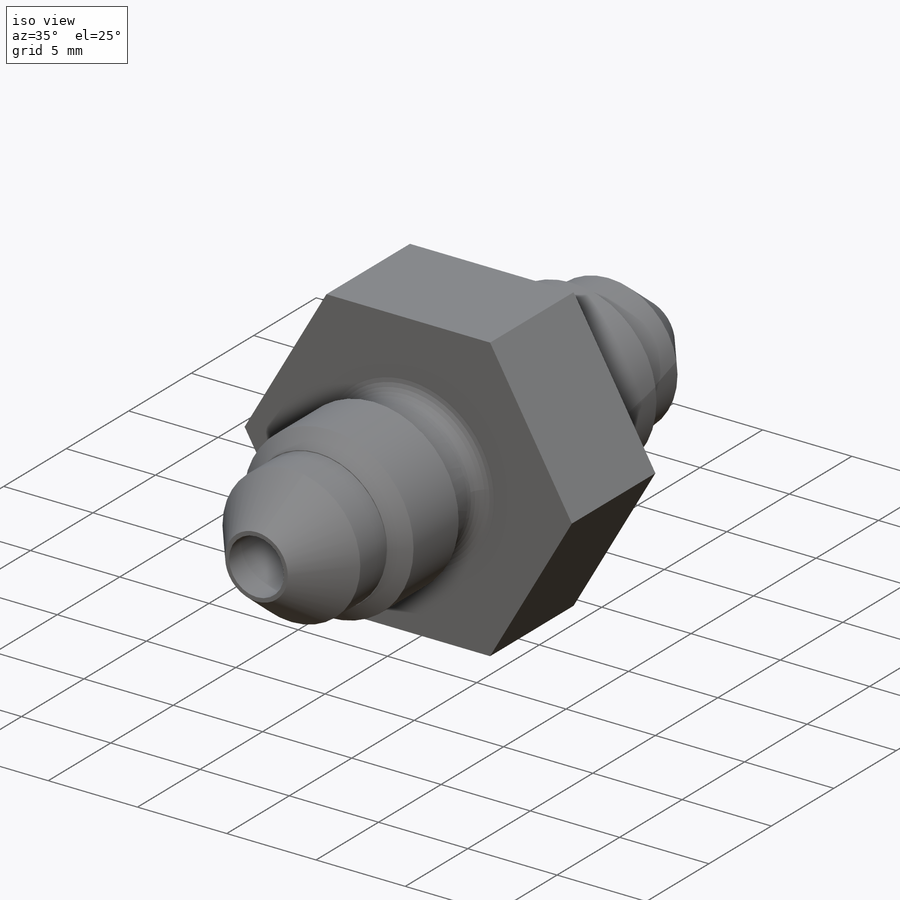
[diagram: iso view]
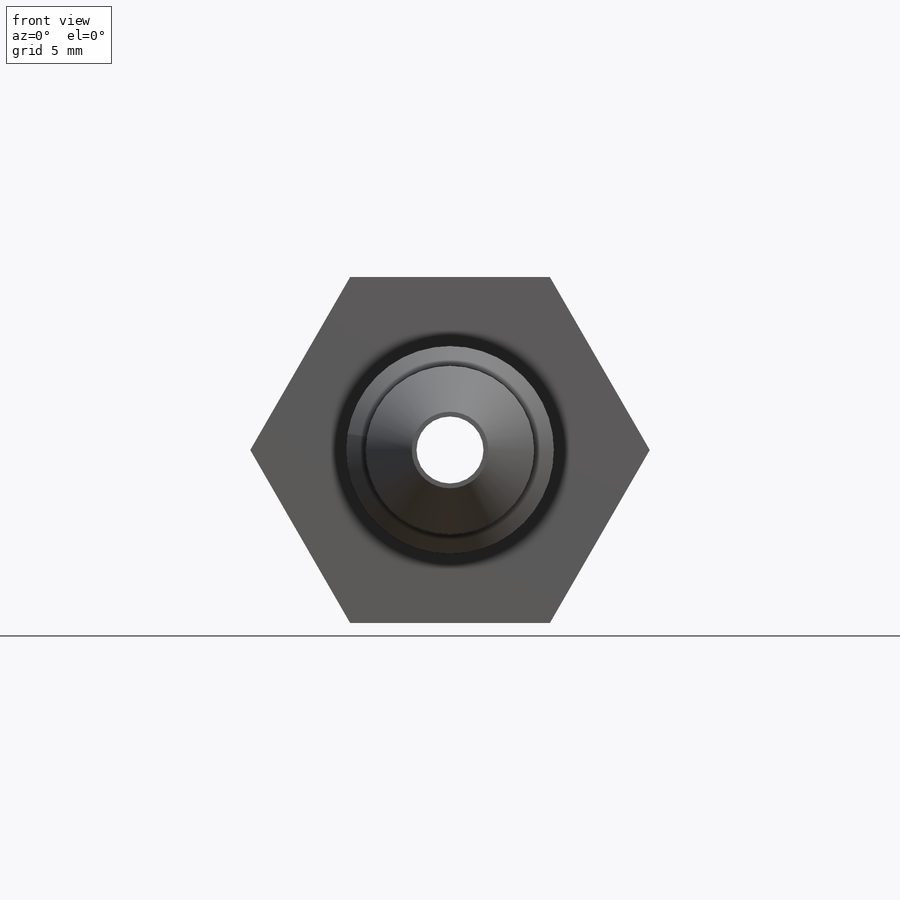
[diagram: front view]
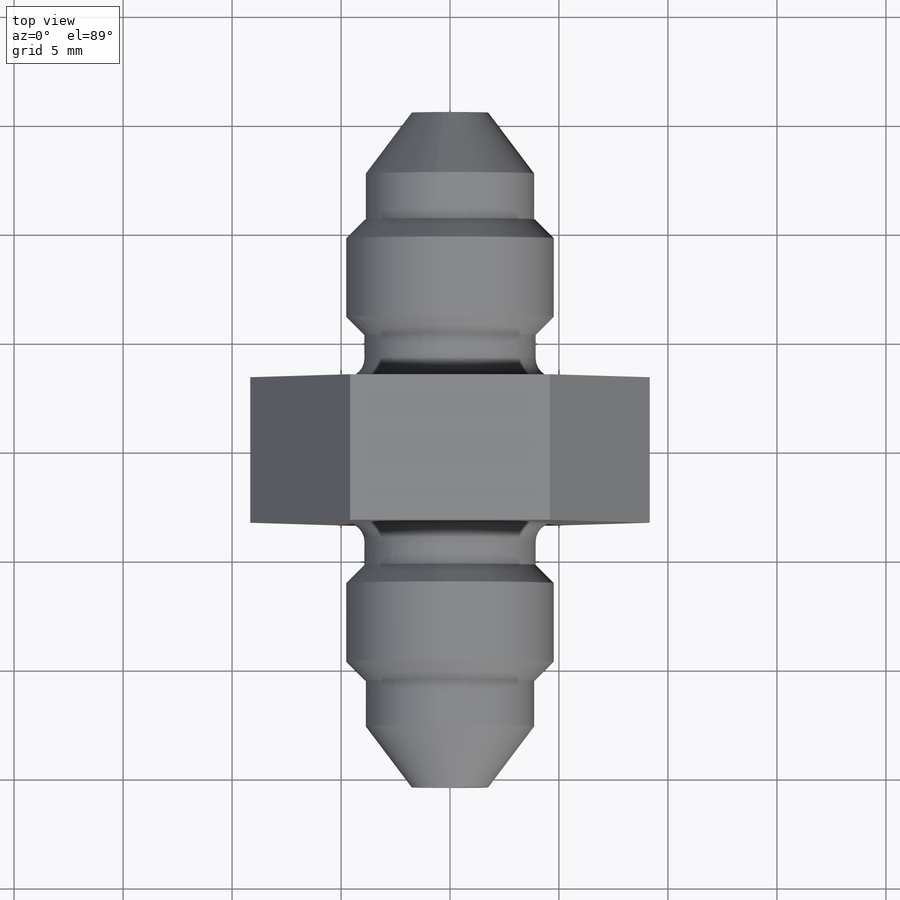
[diagram: top view]
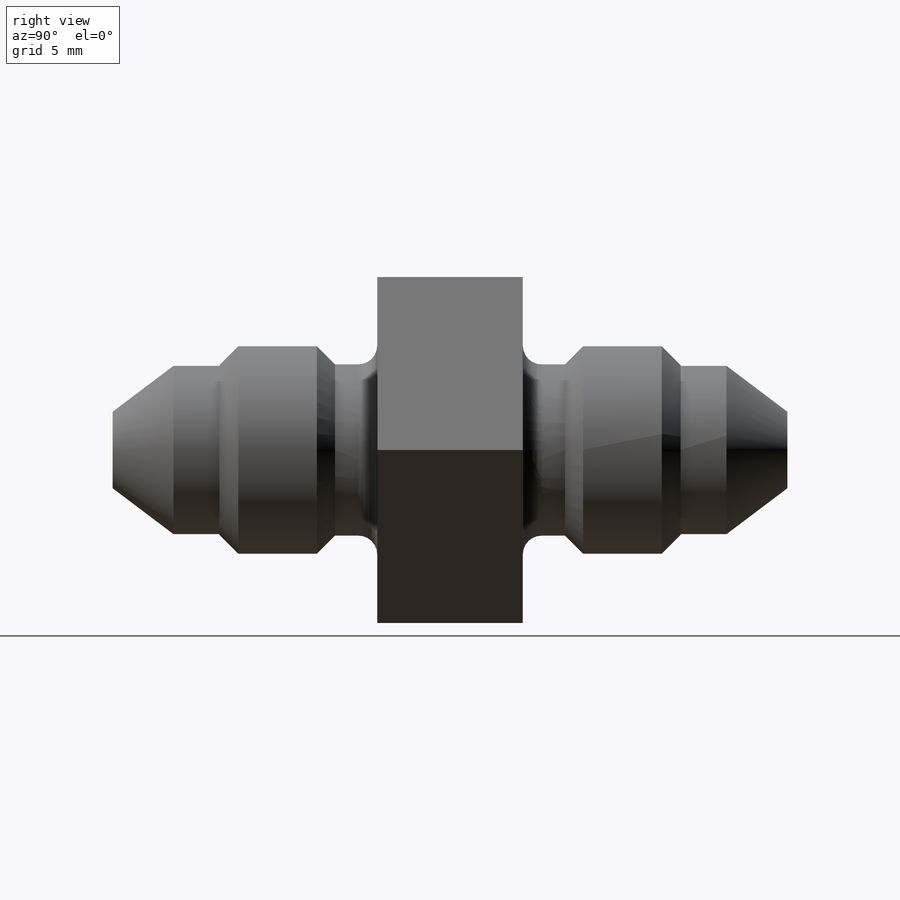
[diagram: right view]
SOLIDWORKS PART (.sldprt)
format: sldprt  version: not decoded by parser v0  size: 291,328 bytes
history: native  units: mm
features: sketch x6, extrude x4, material x1, thread x1, revolve x1, chamfer x1, mirror x1, fillet x1, cut_extrude x1 (+11 scaffold rows collapsed)
feature tree (28):
  scaffold x11  (default folders/planes/origin — collapsed)
  material  "3003 Alloy"
  sketch  "Sketch1"  dims[D1=7.9375mm]
  extrude  "Boss-Extrude1"  Depth=6.6802mm
  sketch  "Sketch2"  dims[D1=7.8613mm]
  extrude  "Boss-Extrude2"  Depth=1.905mm
  sketch  "Sketch3"  dims[D1=9.525mm]
  extrude  "Boss-Extrude3"  [1 undecoded]
  thread  "Cosmetic Thread1"  Diameter=5mm  [1 undecoded]
  sketch  "Sketch4"  dims[D1=7.7216mm]
  extrude  "Boss-Extrude4"  Depth=2.1082mm
  sketch  "Sketch5"  dims[c1.D1=2.794mm c1.D2=~3.268133mm c2.D2=37.0deg]
  revolve  "Revolve1"  Angle=360deg
  chamfer  "Chamfer2"  Distance=0.8636mm Angle=45deg
  mirror  "Mirror2"
  fillet  "Fillet1"  Radius=0.8636mm
  sketch  "Sketch6"  dims[D1=3.0734mm]
  cut_extrude  "Cut-Extrude1"  [1 undecoded]
decode coverage: 13 of 16 modeling features carry decoded parameters
note: ~ marks probable driven/reference dimensions
note: 3 parameter values undecoded
note: suppression state not decoded; provenance and decode notes live in map.json
